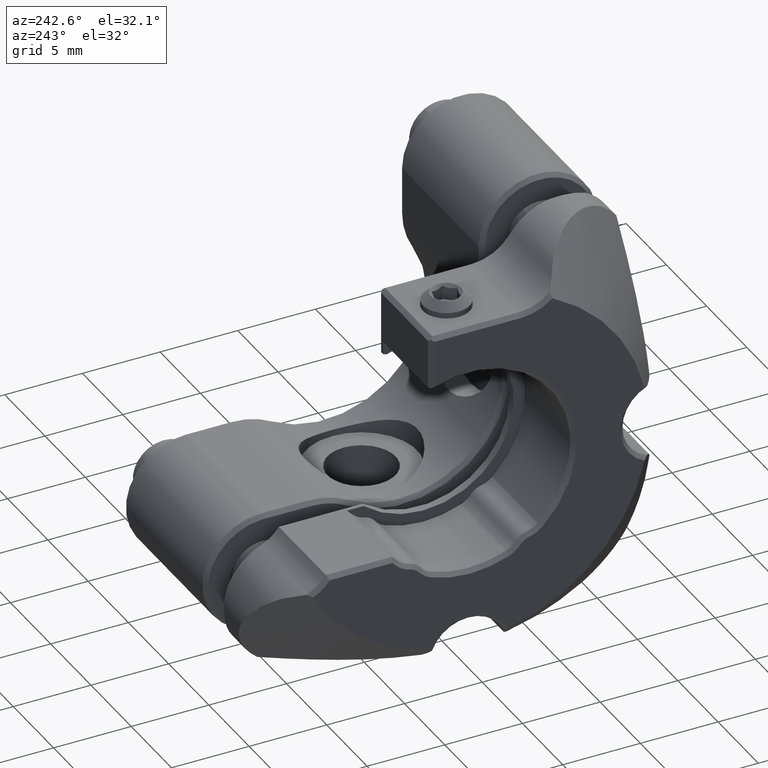
[diagram: clean part render]
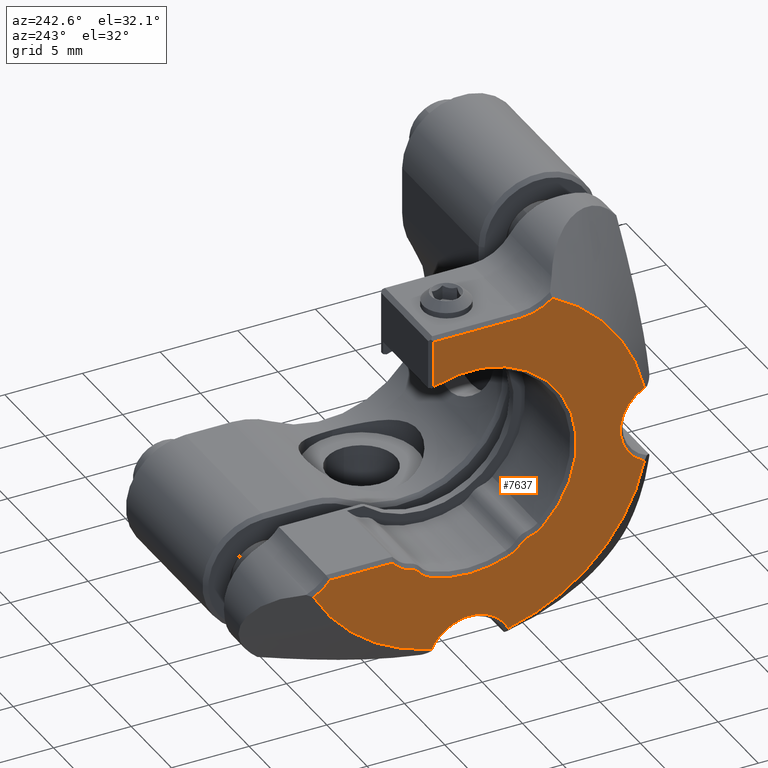
[diagram: same view with one face highlighted and labeled with its STEP entity id]
A machine part, auxiliary view. The second image highlights one B-rep face of the part: STEP entity #7637.
In plain terms, the highlighted planar face has unit normal (-1, 0, 0).
Its self-contained STEP definition (entity closure, byte-faithful):
#29 = CARTESIAN_POINT ( 'NONE',  ( -13.49831131910446480, 0.009999999999987123356, -1.634772123992837882E-14 ) ) ;
#58 = ORIENTED_EDGE ( 'NONE', *, *, #37479, .T. ) ;
#692 = CIRCLE ( 'NONE', #11420, 2.750000000022225777 ) ;
#1637 = CIRCLE ( 'NONE', #4877, 11.49999999999999822 ) ;
#2119 = VERTEX_POINT ( 'NONE', #3438 ) ;
#2664 = AXIS2_PLACEMENT_3D ( 'NONE', #63347, #32142, #52620 ) ;
#3019 = VERTEX_POINT ( 'NONE', #26235 ) ;
#3438 = CARTESIAN_POINT ( 'NONE',  ( -13.49831131903293446, -3.274950259201143687, -5.797750694419052664 ) ) ;
#4170 = DIRECTION ( 'NONE',  ( -1.000000000000000000, 6.597854548650731460E-18, 5.289282768139426242E-33 ) ) ;
#4398 = DIRECTION ( 'NONE',  ( 0.000000000000000000, -8.016670766440418424E-16, 1.000000000000000000 ) ) ;
#4453 = ORIENTED_EDGE ( 'NONE', *, *, #14023, .T. ) ;
#4723 = PLANE ( 'NONE',  #17578 ) ;
#4768 = CARTESIAN_POINT ( 'NONE',  ( -13.49831131910328352, 0.009999999999997098016, -12.44000000000001371 ) ) ;
#4877 = AXIS2_PLACEMENT_3D ( 'NONE', #49521, #4170, #64622 ) ;
#5381 = CARTESIAN_POINT ( 'NONE',  ( -13.49831131918099381, 2.554675290073196603, -6.359805631343800947 ) ) ;
#5418 = VERTEX_POINT ( 'NONE', #8848 ) ;
#5977 = DIRECTION ( 'NONE',  ( 1.000000000000000000, -0.000000000000000000, -0.000000000000000000 ) ) ;
#6236 = CARTESIAN_POINT ( 'NONE',  ( -13.49831131905902737, -3.990000000000005542, -6.344288770224780549 ) ) ;
#6867 = AXIS2_PLACEMENT_3D ( 'NONE', #12469, #7438, #53112 ) ;
#6960 = LINE ( 'NONE', #12669, #11373 ) ;
#6978 = EDGE_CURVE ( 'NONE', #56453, #55794, #31534, .T. ) ;
#7438 = DIRECTION ( 'NONE',  ( -1.000000000000000000, -0.000000000000000000, 0.000000000000000000 ) ) ;
#7637 = ADVANCED_FACE ( 'NONE', ( #33977 ), #4723, .T. ) ;
#7650 = ORIENTED_EDGE ( 'NONE', *, *, #21836, .T. ) ;
#8309 = VECTOR ( 'NONE', #9816, 1000.000000000000000 ) ;
#8368 = VERTEX_POINT ( 'NONE', #5381 ) ;
#8848 = CARTESIAN_POINT ( 'NONE',  ( -13.49831131909992976, 4.651407498602914359, -5.037840453219353698 ) ) ;
#9082 = CIRCLE ( 'NONE', #2664, 6.850000000032447467 ) ;
#9362 = DIRECTION ( 'NONE',  ( 1.000000000000000000, -0.000000000000000000, -0.000000000000000000 ) ) ;
#9693 = CARTESIAN_POINT ( 'NONE',  ( -13.49831131904644010, 0.009999999999987123356, -1.634772123992837882E-14 ) ) ;
#9816 = DIRECTION ( 'NONE',  ( -0.000000000000000000, 8.016670766440418424E-16, -1.000000000000000000 ) ) ;
#9828 = DIRECTION ( 'NONE',  ( 1.000000000000000000, -1.239088197229157293E-16, -9.933362127768344802E-32 ) ) ;
#9953 = CARTESIAN_POINT ( 'NONE',  ( -13.49831131910334037, 2.480255413702211253, -11.23155546623061340 ) ) ;
#10112 = VERTEX_POINT ( 'NONE', #39944 ) ;
#10938 = ORIENTED_EDGE ( 'NONE', *, *, #61124, .T. ) ;
#11373 = VECTOR ( 'NONE', #11994, 1000.000000000000000 ) ;
#11420 = AXIS2_PLACEMENT_3D ( 'NONE', #4768, #35346, #56474 ) ;
#11462 = CIRCLE ( 'NONE', #34030, 1.749999999911562742 ) ;
#11549 = ORIENTED_EDGE ( 'NONE', *, *, #31253, .T. ) ;
#11668 = DIRECTION ( 'NONE',  ( 1.000000000000000000, -0.000000000000000000, -0.000000000000000000 ) ) ;
#11866 = DIRECTION ( 'NONE',  ( -1.000000000000000000, -0.000000000000000000, -0.000000000000000000 ) ) ;
#11994 = DIRECTION ( 'NONE',  ( 0.000000000000000000, 1.000000000000000000, 8.016670766440418424E-16 ) ) ;
#12469 = CARTESIAN_POINT ( 'NONE',  ( -13.49831131910446658, 0.009999999999987123356, -1.634772123992837882E-14 ) ) ;
#12669 = CARTESIAN_POINT ( 'NONE',  ( -13.49831131910446480, 0.009999999999990882502, -4.690000000000018154 ) ) ;
#12859 = EDGE_CURVE ( 'NONE', #65295, #27204, #51991, .T. ) ;
#13673 = EDGE_CURVE ( 'NONE', #27204, #33773, #30430, .T. ) ;
#13832 = ORIENTED_EDGE ( 'NONE', *, *, #29765, .T. ) ;
#14023 = EDGE_CURVE ( 'NONE', #44449, #8368, #26261, .T. ) ;
#14192 = CARTESIAN_POINT ( 'NONE',  ( -13.49831131907222570, 2.320000000032221177, 6.448751817189859459 ) ) ;
#14832 = CIRCLE ( 'NONE', #56679, 0.8999999999851869825 ) ;
#15247 = CARTESIAN_POINT ( 'NONE',  ( -13.49831131910446480, 2.319999999999980744, 9.449999999999979750 ) ) ;
#15663 = DIRECTION ( 'NONE',  ( 1.000000000000000000, -0.000000000000000000, -0.000000000000000000 ) ) ;
#16317 = CARTESIAN_POINT ( 'NONE',  ( -13.49831131910389459, 10.09266417197157750, -5.530812164161846844 ) ) ;
#16385 = CARTESIAN_POINT ( 'NONE',  ( -13.49831131910097604, 0.009999999999987123356, -1.634772123992837882E-14 ) ) ;
#16410 = AXIS2_PLACEMENT_3D ( 'NONE', #29633, #19886, #50125 ) ;
#17563 = DIRECTION ( 'NONE',  ( 0.000000000000000000, -2.523234146883330297E-15, 1.000000000000000000 ) ) ;
#17578 = AXIS2_PLACEMENT_3D ( 'NONE', #55773, #19188, #4398 ) ;
#17584 = EDGE_CURVE ( 'NONE', #22824, #56453, #64845, .T. ) ;
#17681 = CARTESIAN_POINT ( 'NONE',  ( -13.49831131908486981, -3.805125212421229808, -5.463481576264555883 ) ) ;
#17903 = DIRECTION ( 'NONE',  ( 1.000000000000000000, -0.000000000000000000, -0.000000000000000000 ) ) ;
#18377 = ORIENTED_EDGE ( 'NONE', *, *, #58865, .T. ) ;
#18463 = ORIENTED_EDGE ( 'NONE', *, *, #34974, .T. ) ;
#18528 = CARTESIAN_POINT ( 'NONE',  ( -13.49831131910328352, -12.43000000000001037, -2.350153402491794739E-14 ) ) ;
#18933 = CARTESIAN_POINT ( 'NONE',  ( -13.49831131910328352, 3.465646458813139485, -3.750800921362294815 ) ) ;
#19188 = DIRECTION ( 'NONE',  ( -1.000000000000000000, 0.000000000000000000, 0.000000000000000000 ) ) ;
#19475 = VERTEX_POINT ( 'NONE', #38422 ) ;
#19886 = DIRECTION ( 'NONE',  ( 1.000000000000000000, -0.000000000000000000, -0.000000000000000000 ) ) ;
#21836 = EDGE_CURVE ( 'NONE', #5418, #3019, #9082, .T. ) ;
#22824 = VERTEX_POINT ( 'NONE', #53885 ) ;
#23443 = EDGE_CURVE ( 'NONE', #39083, #51445, #1637, .T. ) ;
#23599 = ORIENTED_EDGE ( 'NONE', *, *, #12859, .T. ) ;
#23627 = DIRECTION ( 'NONE',  ( 0.000000000000000000, 2.891205793342264684E-15, -1.000000000000000000 ) ) ;
#24387 = AXIS2_PLACEMENT_3D ( 'NONE', #18528, #43739, #38701 ) ;
#25638 = AXIS2_PLACEMENT_3D ( 'NONE', #29, #51400, #61796 ) ;
#26235 = CARTESIAN_POINT ( 'NONE',  ( -13.49831131909378534, 5.002634575101697401, -4.689999999995028368 ) ) ;
#26261 = CIRCLE ( 'NONE', #63781, 6.850000000040347814 ) ;
#26411 = ORIENTED_EDGE ( 'NONE', *, *, #13673, .T. ) ;
#27204 = VERTEX_POINT ( 'NONE', #31924 ) ;
#28552 = CARTESIAN_POINT ( 'NONE',  ( -13.49831131911586546, -2.460255413705510819, -11.23155546623258338 ) ) ;
#29266 = CIRCLE ( 'NONE', #55016, 3.249999999975260678 ) ;
#29633 = CARTESIAN_POINT ( 'NONE',  ( -13.49831131917780347, 1.904575763409067646, -4.735037769300584287 ) ) ;
#29765 = EDGE_CURVE ( 'NONE', #3019, #22824, #6960, .T. ) ;
#29860 = ORIENTED_EDGE ( 'NONE', *, *, #58477, .T. ) ;
#30323 = AXIS2_PLACEMENT_3D ( 'NONE', #6236, #41866, #47227 ) ;
#30430 = CIRCLE ( 'NONE', #34709, 1.749999999965805797 ) ;
#30542 = CARTESIAN_POINT ( 'NONE',  ( -13.49831131913229676, -3.235533683331981436, 9.449999999972146014 ) ) ;
#31253 = EDGE_CURVE ( 'NONE', #55794, #59848, #692, .T. ) ;
#31446 = ORIENTED_EDGE ( 'NONE', *, *, #33019, .T. ) ;
#31534 = CIRCLE ( 'NONE', #6867, 11.49999999999999822 ) ;
#31763 = ORIENTED_EDGE ( 'NONE', *, *, #55932, .T. ) ;
#31924 = CARTESIAN_POINT ( 'NONE',  ( -13.49831131904469217, -4.631407498580354165, -5.037840453166432475 ) ) ;
#32053 = ORIENTED_EDGE ( 'NONE', *, *, #55989, .T. ) ;
#32142 = DIRECTION ( 'NONE',  ( 1.000000000000000000, -0.000000000000000000, -0.000000000000000000 ) ) ;
#33019 = EDGE_CURVE ( 'NONE', #10112, #5418, #11462, .T. ) ;
#33773 = VERTEX_POINT ( 'NONE', #17681 ) ;
#33977 = FACE_OUTER_BOUND ( 'NONE', #53725, .T. ) ;
#34030 = AXIS2_PLACEMENT_3D ( 'NONE', #18933, #9828, #49499 ) ;
#34333 = ORIENTED_EDGE ( 'NONE', *, *, #23443, .T. ) ;
#34709 = AXIS2_PLACEMENT_3D ( 'NONE', #35905, #5977, #41605 ) ;
#34974 = EDGE_CURVE ( 'NONE', #19475, #39083, #59765, .T. ) ;
#35346 = DIRECTION ( 'NONE',  ( 1.000000000000000000, -0.000000000000000000, -0.000000000000000000 ) ) ;
#35905 = CARTESIAN_POINT ( 'NONE',  ( -13.49831131904383952, -3.445646458813160340, -3.750800921362299256 ) ) ;
#37060 = ORIENTED_EDGE ( 'NONE', *, *, #50769, .T. ) ;
#37256 = DIRECTION ( 'NONE',  ( 0.000000000000000000, 1.000000000000000000, 8.016670766440418424E-16 ) ) ;
#37479 = EDGE_CURVE ( 'NONE', #38899, #65295, #59890, .T. ) ;
#38422 = CARTESIAN_POINT ( 'NONE',  ( -13.49831131910334037, -11.22155546625942968, -2.470255413619197871 ) ) ;
#38701 = DIRECTION ( 'NONE',  ( 0.000000000000000000, -1.000000000000000000, -8.016670766440414479E-16 ) ) ;
#38899 = VERTEX_POINT ( 'NONE', #15247 ) ;
#39069 = CARTESIAN_POINT ( 'NONE',  ( -13.49831131915306770, 3.294950259289341599, -5.797750694449269382 ) ) ;
#39083 = VERTEX_POINT ( 'NONE', #58519 ) ;
#39944 = CARTESIAN_POINT ( 'NONE',  ( -13.49831131910315207, 3.825125212422418208, -5.463481576237846582 ) ) ;
#40241 = VERTEX_POINT ( 'NONE', #39069 ) ;
#41539 = CARTESIAN_POINT ( 'NONE',  ( -13.49831131907273196, -1.884575763409087168, -4.735037769300586952 ) ) ;
#41605 = DIRECTION ( 'NONE',  ( 0.000000000000000000, -7.434529182903012158E-16, 1.000000000000000000 ) ) ;
#41866 = DIRECTION ( 'NONE',  ( -1.000000000000000000, -0.000000000000000000, -0.000000000000000000 ) ) ;
#42292 = CARTESIAN_POINT ( 'NONE',  ( -13.49831131910446480, 0.009999999999979547818, 9.449999999999977973 ) ) ;
#42444 = CARTESIAN_POINT ( 'NONE',  ( -13.49831131910328175, 11.20999999999999019, -3.018032697638730610 ) ) ;
#43179 = CIRCLE ( 'NONE', #30323, 0.9000000000290451219 ) ;
#43739 = DIRECTION ( 'NONE',  ( 1.000000000000000000, -7.885106709334939624E-17, -5.077732288346883848E-32 ) ) ;
#43873 = CIRCLE ( 'NONE', #25638, 11.50000000000000000 ) ;
#44449 = VERTEX_POINT ( 'NONE', #61761 ) ;
#44890 = EDGE_CURVE ( 'NONE', #60666, #38899, #63406, .T. ) ;
#45392 = CIRCLE ( 'NONE', #16410, 1.750000000025870639 ) ;
#45984 = DIRECTION ( 'NONE',  ( 0.000000000000000000, 9.746443343385503915E-16, 1.000000000000000000 ) ) ;
#46522 = ORIENTED_EDGE ( 'NONE', *, *, #6978, .T. ) ;
#46594 = AXIS2_PLACEMENT_3D ( 'NONE', #42444, #17903, #17563 ) ;
#47227 = DIRECTION ( 'NONE',  ( 0.000000000000000000, -2.891205793201372549E-15, -1.000000000000000000 ) ) ;
#48043 = CARTESIAN_POINT ( 'NONE',  ( -13.49831131916012694, -3.235533683331984545, 12.69999999999998330 ) ) ;
#49499 = DIRECTION ( 'NONE',  ( 0.000000000000000000, -1.000000000000000000, -7.434529183133453220E-16 ) ) ;
#49521 = CARTESIAN_POINT ( 'NONE',  ( -13.49831131910446835, 0.009999999999987156316, -1.634772123992837882E-14 ) ) ;
#49596 = AXIS2_PLACEMENT_3D ( 'NONE', #41539, #15663, #61337 ) ;
#50125 = DIRECTION ( 'NONE',  ( 0.000000000000000000, -7.434529182647838335E-16, 1.000000000000000000 ) ) ;
#50769 = EDGE_CURVE ( 'NONE', #40241, #10112, #14832, .T. ) ;
#51400 = DIRECTION ( 'NONE',  ( -1.000000000000000000, -0.000000000000000000, 0.000000000000000000 ) ) ;
#51445 = VERTEX_POINT ( 'NONE', #61853 ) ;
#51991 = CIRCLE ( 'NONE', #65802, 6.849999999985811883 ) ;
#52620 = DIRECTION ( 'NONE',  ( 0.000000000000000000, -8.017754204337033215E-16, 1.000000000000000000 ) ) ;
#53112 = DIRECTION ( 'NONE',  ( 0.000000000000000000, 8.016614432970266323E-16, -1.000000000000000000 ) ) ;
#53725 = EDGE_LOOP ( 'NONE', ( #37060, #31446, #7650, #13832, #55226, #46522, #11549, #10938, #18463, #34333, #18377, #61729, #58, #23599, #26411, #32053, #31763, #4453, #29860 ) ) ;
#53885 = CARTESIAN_POINT ( 'NONE',  ( -13.49831131910387505, 9.026648141088820410, -4.690000000000011049 ) ) ;
#55016 = AXIS2_PLACEMENT_3D ( 'NONE', #48043, #63140, #57120 ) ;
#55226 = ORIENTED_EDGE ( 'NONE', *, *, #17584, .T. ) ;
#55773 = CARTESIAN_POINT ( 'NONE',  ( -13.49831131910446480, 0.009999999999987123356, -1.634772123992837882E-14 ) ) ;
#55794 = VERTEX_POINT ( 'NONE', #9953 ) ;
#55837 = CARTESIAN_POINT ( 'NONE',  ( -13.49831131910446480, 2.319999999999988294, -1.449587029288064093E-14 ) ) ;
#55932 = EDGE_CURVE ( 'NONE', #2119, #44449, #63521, .T. ) ;
#55989 = EDGE_CURVE ( 'NONE', #33773, #2119, #43179, .T. ) ;
#56039 = DIRECTION ( 'NONE',  ( 0.000000000000000000, 9.746443343463100218E-16, 1.000000000000000000 ) ) ;
#56453 = VERTEX_POINT ( 'NONE', #16317 ) ;
#56474 = DIRECTION ( 'NONE',  ( 0.000000000000000000, -8.014471740865006029E-16, 1.000000000000000000 ) ) ;
#56679 = AXIS2_PLACEMENT_3D ( 'NONE', #62918, #11866, #23627 ) ;
#57120 = DIRECTION ( 'NONE',  ( 0.000000000000000000, 9.340818716869295873E-16, 1.000000000000000000 ) ) ;
#58477 = EDGE_CURVE ( 'NONE', #8368, #40241, #45392, .T. ) ;
#58519 = CARTESIAN_POINT ( 'NONE',  ( -13.49831131910393189, -11.22155546624514244, 2.470255413648361653 ) ) ;
#58865 = EDGE_CURVE ( 'NONE', #51445, #60666, #29266, .T. ) ;
#59765 = CIRCLE ( 'NONE', #24387, 2.749999999934967576 ) ;
#59848 = VERTEX_POINT ( 'NONE', #28552 ) ;
#59890 = LINE ( 'NONE', #55837, #8309 ) ;
#60666 = VERTEX_POINT ( 'NONE', #30542 ) ;
#61124 = EDGE_CURVE ( 'NONE', #59848, #19475, #43873, .T. ) ;
#61337 = DIRECTION ( 'NONE',  ( 0.000000000000000000, -2.602085213998454423E-15, 1.000000000000000000 ) ) ;
#61729 = ORIENTED_EDGE ( 'NONE', *, *, #44890, .T. ) ;
#61761 = CARTESIAN_POINT ( 'NONE',  ( -13.49831131906788606, -2.534675290079710042, -6.359805631290046612 ) ) ;
#61796 = DIRECTION ( 'NONE',  ( 0.000000000000000000, 8.016614432970265336E-16, -1.000000000000000000 ) ) ;
#61853 = CARTESIAN_POINT ( 'NONE',  ( -13.49831131914326754, -5.307990508585726630, 10.19651788358389410 ) ) ;
#62918 = CARTESIAN_POINT ( 'NONE',  ( -13.49831131910288740, 4.009999999999995346, -6.344288770224771667 ) ) ;
#63138 = VECTOR ( 'NONE', #37256, 1000.000000000000000 ) ;
#63140 = DIRECTION ( 'NONE',  ( 1.000000000000000000, -0.000000000000000000, -0.000000000000000000 ) ) ;
#63347 = CARTESIAN_POINT ( 'NONE',  ( -13.49831131909307302, 0.009999999999987123356, -1.634772123992837882E-14 ) ) ;
#63406 = LINE ( 'NONE', #42292, #63138 ) ;
#63521 = CIRCLE ( 'NONE', #49596, 1.749999999977642329 ) ;
#63781 = AXIS2_PLACEMENT_3D ( 'NONE', #16385, #11668, #45984 ) ;
#64622 = DIRECTION ( 'NONE',  ( 0.000000000000000000, 1.000000000000000000, 2.578023916044292208E-15 ) ) ;
#64845 = CIRCLE ( 'NONE', #46594, 2.749999999991308730 ) ;
#65295 = VERTEX_POINT ( 'NONE', #14192 ) ;
#65802 = AXIS2_PLACEMENT_3D ( 'NONE', #9693, #9362, #56039 ) ;